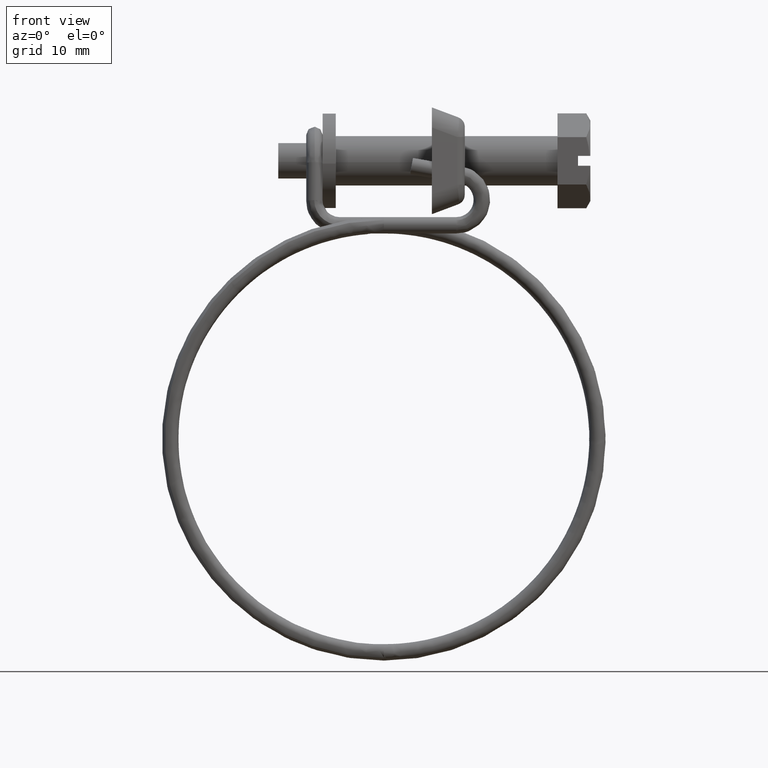
[diagram: clean part render]
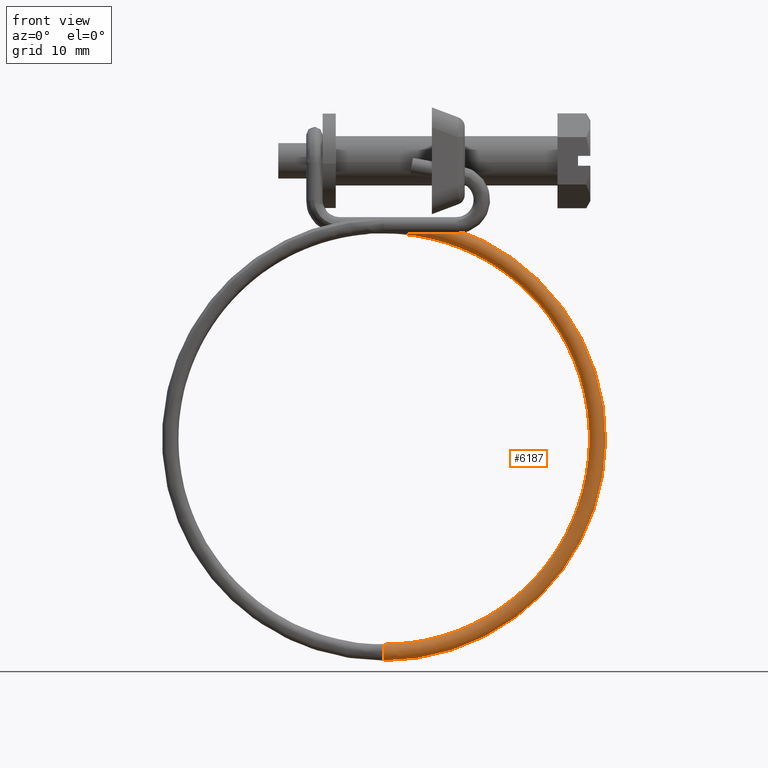
[diagram: same view with one face highlighted and labeled with its STEP entity id]
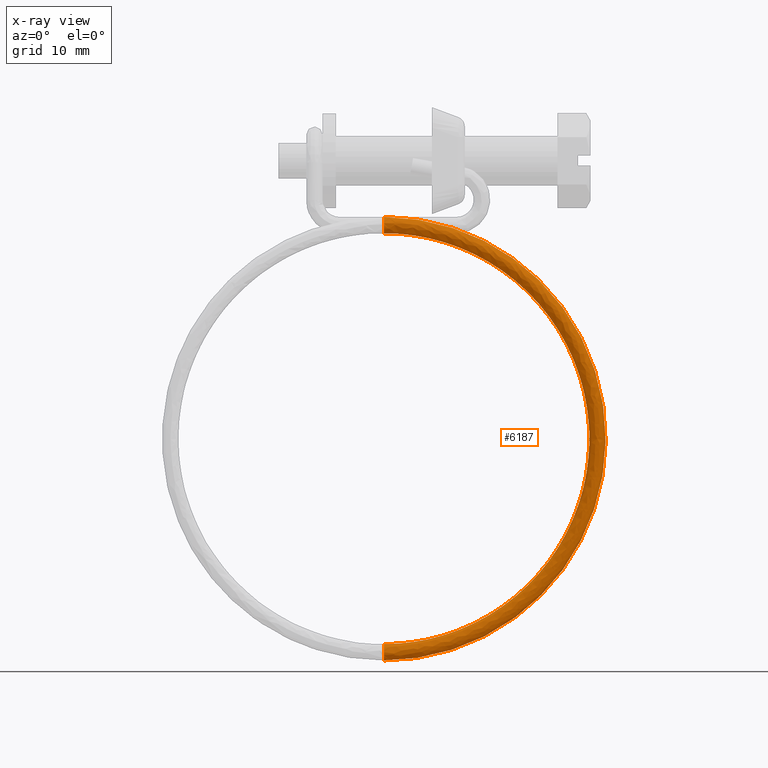
[diagram: x-ray of the same camera — body ghosted, the highlighted face saturated]
A machine part, front view. The second image highlights one B-rep face of the part: STEP entity #6187.
The next image is the same camera in x-ray: the body ghosted, the highlighted face saturated — about 0% of this face is hidden behind the body in this view.
In plain terms, the highlighted face is a freeform B-spline surface patch.
Its self-contained STEP definition (entity closure, byte-faithful):
#4789=CARTESIAN_POINT('',(-21.149997006963641,-3.594625118787946,-8.558833459366841));
#4790=VERTEX_POINT('',#4789);
#4796=CARTESIAN_POINT('',(-21.149997041421340,-4.300002000000000,-8.850001000000344));
#4797=VERTEX_POINT('',#4796);
#4798=CARTESIAN_POINT('',(-21.149997041421340,-4.300002000000000,-8.850001000000344));
#4799=CARTESIAN_POINT('',(-21.149997041421340,-3.887219065843691,-8.850001000000344));
#4800=CARTESIAN_POINT('',(-21.149997006963641,-3.594625118787945,-8.558833459366841));
#4808=(BOUNDED_CURVE()B_SPLINE_CURVE(2,(#4798,#4799,#4800),.UNSPECIFIED.,.F.,.U.)B_SPLINE_CURVE_WITH_KNOTS((3,3),(0.500000000000000,0.624631308691292),.UNSPECIFIED.)CURVE()GEOMETRIC_REPRESENTATION_ITEM()RATIONAL_B_SPLINE_CURVE((1.0,0.853985339329898,0.853554664639234))REPRESENTATION_ITEM(''));
#4809=EDGE_CURVE('',#4797,#4790,#4808,.T.);
#4811=CARTESIAN_POINT('',(-21.149997001619631,-5.048017517043782,-8.513683897837748));
#4812=VERTEX_POINT('',#4811);
#4813=CARTESIAN_POINT('',(-21.149997001619628,-5.048017517043782,-8.513683897837748));
#4814=CARTESIAN_POINT('',(-21.149997041421290,-4.749617038770698,-8.850000648479373));
#4815=CARTESIAN_POINT('',(-21.149997041421340,-4.300002000000000,-8.850001000000344));
#4823=(BOUNDED_CURVE()B_SPLINE_CURVE(2,(#4813,#4814,#4815),.UNSPECIFIED.,.F.,.U.)B_SPLINE_CURVE_WITH_KNOTS((3,3),(0.365993817823368,0.500000000000000),.UNSPECIFIED.)CURVE()GEOMETRIC_REPRESENTATION_ITEM()RATIONAL_B_SPLINE_CURVE((0.854313613147997,0.843001991845537,1.0))REPRESENTATION_ITEM(''));
#4824=EDGE_CURVE('',#4812,#4797,#4823,.T.);
#4874=CARTESIAN_POINT('',(-21.149996804734521,-4.306285020370282,-6.850040477903796));
#4875=VERTEX_POINT('',#4874);
#4876=CARTESIAN_POINT('',(-21.149996804734517,-4.306285020370282,-6.850040477903796));
#4877=CARTESIAN_POINT('',(-21.149996805473414,-5.300001690583303,-6.856284072166679));
#4878=CARTESIAN_POINT('',(-21.149996923076689,-5.300001341733656,-7.850010371523294));
#4879=CARTESIAN_POINT('',(-21.149996968009297,-5.300001208448901,-8.229682728968895));
#4880=CARTESIAN_POINT('',(-21.149997001619631,-5.048017517043782,-8.513683897837748));
#4888=(BOUNDED_CURVE()B_SPLINE_CURVE(2,(#4876,#4877,#4878,#4879,#4880),.UNSPECIFIED.,.F.,.U.)B_SPLINE_CURVE_WITH_KNOTS((3,2,3),(0.001109280963101,0.250000000000000,0.365993817823368),.UNSPECIFIED.)CURVE()GEOMETRIC_REPRESENTATION_ITEM()RATIONAL_B_SPLINE_CURVE((0.997412326028455,0.708406384673953,1.0,0.864104789341010,0.854313613147997))REPRESENTATION_ITEM(''));
#4889=EDGE_CURVE('',#4875,#4812,#4888,.T.);
#4891=CARTESIAN_POINT('',(-21.149996914825689,-3.302436326159856,-7.780267748420702));
#4892=VERTEX_POINT('',#4891);
#4906=CARTESIAN_POINT('',(-21.149997006963641,-3.594625118787945,-8.558833459366841));
#4907=CARTESIAN_POINT('',(-21.149996972266976,-3.300002000000000,-8.265646639289143));
#4908=CARTESIAN_POINT('',(-21.149996923078149,-3.300002000000000,-7.850001000000351));
#4909=CARTESIAN_POINT('',(-21.149996918946893,-3.300001999999999,-7.815091884121492));
#4910=CARTESIAN_POINT('',(-21.149996914825692,-3.302436326159857,-7.780267748420702));
#4918=(BOUNDED_CURVE()B_SPLINE_CURVE(2,(#4906,#4907,#4908,#4909,#4910),.UNSPECIFIED.,.F.,.U.)B_SPLINE_CURVE_WITH_KNOTS((3,2,3),(0.624631308691291,0.750000000000000,0.762166313466290),.UNSPECIFIED.)CURVE()GEOMETRIC_REPRESENTATION_ITEM()RATIONAL_B_SPLINE_CURVE((0.853554664639234,0.853121441856648,1.0,0.985746277151060,0.972879876384054))REPRESENTATION_ITEM(''));
#4919=EDGE_CURVE('',#4790,#4892,#4918,.T.);
#6049=CARTESIAN_POINT('',(-24.835168674842297,-3.303985170346735,-8.019664856806582));
#6050=CARTESIAN_POINT('',(4.941890185120801,-3.303985170346735,-3.771424186172226));
#6051=CARTESIAN_POINT('',(4.941890185120805,-3.303985170346736,-33.850001000000013));
#6052=CARTESIAN_POINT('',(4.941890185120804,-3.303985170346734,-63.928577813827708));
#6053=CARTESIAN_POINT('',(-24.835168674842290,-3.303985170346736,-59.680337143193462));
#6054=CARTESIAN_POINT('',(-24.833597375477868,-3.303207482734692,-8.030678515704201));
#6055=CARTESIAN_POINT('',(4.930765003593931,-3.303207482734692,-3.784249229691477));
#6056=CARTESIAN_POINT('',(4.930765003593935,-3.303207482734693,-33.850001000000020));
#6057=CARTESIAN_POINT('',(4.930765003593937,-3.303207482734692,-63.915752770308472));
#6058=CARTESIAN_POINT('',(-24.833597375477851,-3.303207482734693,-59.669323484295838));
#6059=CARTESIAN_POINT('',(-24.828006934595965,-3.300440590111869,-8.069863416019187));
#6060=CARTESIAN_POINT('',(4.891183322958193,-3.300440590111870,-3.829878757218054));
#6061=CARTESIAN_POINT('',(4.891183322958196,-3.300440590111870,-33.850000999999992));
#6062=CARTESIAN_POINT('',(4.891183322958198,-3.300440590111871,-63.870123242781951));
#6063=CARTESIAN_POINT('',(-24.828006934595962,-3.300440590111869,-59.630138583980802));
#6064=CARTESIAN_POINT('',(-24.823965084258628,-3.300080955796184,-8.098193829649008));
#6065=CARTESIAN_POINT('',(4.862566039883344,-3.300080955796186,-3.862868592031205));
#6066=CARTESIAN_POINT('',(4.862566039883344,-3.300080955796184,-33.850000999999999));
#6067=CARTESIAN_POINT('',(4.862566039883347,-3.300080955796184,-63.837133407968793));
#6068=CARTESIAN_POINT('',(-24.823965084258628,-3.300080955796185,-59.601808170351006));
#6069=CARTESIAN_POINT('',(-24.682738148100636,-3.287514915912832,-9.088091322900246));
#6070=CARTESIAN_POINT('',(3.862644995679524,-3.287514915912833,-5.015571662696382));
#6071=CARTESIAN_POINT('',(3.862644995679528,-3.287514915912832,-33.850001000000006));
#6072=CARTESIAN_POINT('',(3.862644995679535,-3.287514915912833,-62.684430337303624));
#6073=CARTESIAN_POINT('',(-24.682738148100629,-3.287514915912832,-58.611910677099765));
#6074=CARTESIAN_POINT('',(-24.680963344657240,-4.287435960116647,-9.100531396496784));
#6075=CARTESIAN_POINT('',(3.850078955796171,-4.287435960116648,-5.030057719214152));
#6076=CARTESIAN_POINT('',(3.850078955796175,-4.287435960116647,-33.850000999999999));
#6077=CARTESIAN_POINT('',(3.850078955796179,-4.287435960116647,-62.669944280785835));
#6078=CARTESIAN_POINT('',(-24.680963344657240,-4.287435960116647,-58.599470603503214));
#6079=CARTESIAN_POINT('',(-24.679188541213875,-5.287357004320464,-9.112971470093328));
#6080=CARTESIAN_POINT('',(3.837512915912821,-5.287357004320463,-5.044543775731913));
#6081=CARTESIAN_POINT('',(3.837512915912822,-5.287357004320464,-33.850001000000006));
#6082=CARTESIAN_POINT('',(3.837512915912825,-5.287357004320463,-62.655458224268081));
#6083=CARTESIAN_POINT('',(-24.679188541213868,-5.287357004320462,-58.587030529906677));
#6084=CARTESIAN_POINT('',(-24.820415477371860,-5.299923044203815,-8.123073976842091));
#6085=CARTESIAN_POINT('',(4.837433960116635,-5.299923044203815,-3.891840705066742));
#6086=CARTESIAN_POINT('',(4.837433960116638,-5.299923044203815,-33.850000999999999));
#6087=CARTESIAN_POINT('',(4.837433960116645,-5.299923044203815,-63.808161294933250));
#6088=CARTESIAN_POINT('',(-24.820415477371860,-5.299923044203815,-59.576928023157905));
#6089=CARTESIAN_POINT('',(-24.961642413529862,-5.312489084087169,-7.133176483590862));
#6090=CARTESIAN_POINT('',(5.837355004320454,-5.312489084087169,-2.739137634401562));
#6091=CARTESIAN_POINT('',(5.837355004320454,-5.312489084087169,-33.850001000000006));
#6092=CARTESIAN_POINT('',(5.837355004320459,-5.312489084087169,-64.960864365598439));
#6093=CARTESIAN_POINT('',(-24.961642413529855,-5.312489084087168,-60.566825516409139));
#6094=CARTESIAN_POINT('',(-24.963441754718151,-4.298743518865074,-7.120564418355676));
#6095=CARTESIAN_POINT('',(5.850094777403532,-4.298743518865077,-2.724451299277837));
#6096=CARTESIAN_POINT('',(5.850094777403535,-4.298743518865077,-33.850001000000006));
#6097=CARTESIAN_POINT('',(5.850094777403538,-4.298743518865077,-64.975550700722167));
#6098=CARTESIAN_POINT('',(-24.963441754718144,-4.298743518865076,-60.579437581644335));
#6099=CARTESIAN_POINT('',(-24.963466013019985,-4.285076435563923,-7.120394385408472));
#6100=CARTESIAN_POINT('',(5.850266532078409,-4.285076435563924,-2.724253301503631));
#6101=CARTESIAN_POINT('',(5.850266532078415,-4.285076435563925,-33.850000999999999));
#6102=CARTESIAN_POINT('',(5.850266532078416,-4.285076435563924,-64.975748698496361));
#6103=CARTESIAN_POINT('',(-24.963466013019985,-4.285076435563925,-60.579607614591524));
#6111=(BOUNDED_SURFACE()B_SPLINE_SURFACE(2,2,((#6049,#6054,#6059,#6064,#6069,#6074,#6079,#6084,#6089,#6094,#6099),(#6050,#6055,#6060,#6065,#6070,#6075,#6080,#6085,#6090,#6095,#6100),(#6051,#6056,#6061,#6066,#6071,#6076,#6081,#6086,#6091,#6096,#6101),(#6052,#6057,#6062,#6067,#6072,#6077,#6082,#6087,#6092,#6097,#6102),(#6053,#6058,#6063,#6068,#6073,#6078,#6083,#6088,#6093,#6098,#6103)),.UNSPECIFIED.,.F.,.F.,.U.)B_SPLINE_SURFACE_WITH_KNOTS((3,2,3),(3,1,2,2,2,1,3),(0.0,49.286871046075049,98.573742092150098),(0.0,0.025223041166774,0.091497147942495,1.748351397434886,3.405205646927277,5.062059896419667,5.094641911159926),.UNSPECIFIED.)GEOMETRIC_REPRESENTATION_ITEM()RATIONAL_B_SPLINE_SURFACE(((0.965014600618829,0.969098596566595,0.983913383528984,0.995577285838481,0.703979450011688,0.995577285838481,0.703979450011688,0.995577285838481,0.703979450011688,1.001311553042761,1.007045820247041),(0.633749724897836,0.636431789300510,0.646161038117899,0.653821020542143,0.462321277307658,0.653821020542143,0.462321277307658,0.653821020542143,0.462321277307658,0.657586860210136,0.661352699878130),(0.969301544285523,0.973403682819476,0.988284282420452,1.0,0.707106781186548,1.0,0.707106781186548,1.0,0.707106781186548,1.005759740891889,1.011519481783778),(0.633749724897836,0.636431789300510,0.646161038117899,0.653821020542143,0.462321277307658,0.653821020542143,0.462321277307658,0.653821020542143,0.462321277307658,0.657586860210136,0.661352699878130),(0.965014600618829,0.969098596566595,0.983913383528984,0.995577285838481,0.703979450011688,0.995577285838481,0.703979450011688,0.995577285838481,0.703979450011688,1.001311553042761,1.007045820247041)))REPRESENTATION_ITEM('')SURFACE());
#6112=CARTESIAN_POINT('',(-21.149999999998919,-4.300002000000003,-58.850000999999999));
#6113=VERTEX_POINT('',#6112);
#6114=CARTESIAN_POINT('',(-21.149999999998901,-3.302485887035315,-59.919730657954759));
#6115=VERTEX_POINT('',#6114);
#6116=CARTESIAN_POINT('',(-21.149999999998919,-4.300002000000003,-58.850000999999999));
#6117=CARTESIAN_POINT('',(-21.149999999998919,-4.038196562363256,-58.850001438668563));
#6118=CARTESIAN_POINT('',(-21.149999999998919,-3.778000607902755,-58.957775164691682));
#6119=CARTESIAN_POINT('',(-21.149999999998919,-3.407742631726005,-59.328016695221827));
#6120=CARTESIAN_POINT('',(-21.149999999998911,-3.299960596688532,-59.588204614319672));
#6121=CARTESIAN_POINT('',(-21.149999999998911,-3.299953531839379,-59.873276473137132));
#6122=CARTESIAN_POINT('',(-21.149999999998911,-3.300804581624378,-59.896535733557762));
#6123=CARTESIAN_POINT('',(-21.149999999998901,-3.302485887035315,-59.919730657954759));
#6124=B_SPLINE_CURVE_WITH_KNOTS('',3,(#6116,#6117,#6118,#6119,#6120,#6121,#6122,#6123),.UNSPECIFIED.,.F.,.U.,(4,2,2,4),(0.500000000000000,0.625000000000000,0.750000000000000,0.761111541812489),.UNSPECIFIED.);
#6125=EDGE_CURVE('',#6113,#6115,#6124,.T.);
#6126=ORIENTED_EDGE('',*,*,#6125,.F.);
#6127=CARTESIAN_POINT('',(-21.149999999998752,-5.028950104822924,-60.534537615100980));
#6128=VERTEX_POINT('',#6127);
#6129=CARTESIAN_POINT('',(-21.149999999998752,-5.028950104822924,-60.534537615100980));
#6130=CARTESIAN_POINT('',(-21.149999999998851,-5.200678408402418,-60.351169861159242));
#6131=CARTESIAN_POINT('',(-21.149999999998869,-5.300001999999999,-60.101328293313877));
#6132=CARTESIAN_POINT('',(-21.149999999998890,-5.300002000000001,-59.588201612200862));
#6133=CARTESIAN_POINT('',(-21.149999999998901,-5.192228903609815,-59.328014341236717));
#6134=CARTESIAN_POINT('',(-21.149999999998919,-4.821988658763284,-58.957774096390189));
#6135=CARTESIAN_POINT('',(-21.149999999998919,-4.561801387799152,-58.850001000000013));
#6136=CARTESIAN_POINT('',(-21.149999999998919,-4.300002000000003,-58.850000999999999));
#6137=B_SPLINE_CURVE_WITH_KNOTS('',3,(#6129,#6130,#6131,#6132,#6133,#6134,#6135,#6136),.UNSPECIFIED.,.F.,.U.,(4,2,2,4),(0.130000056805568,0.250000000000000,0.375000000000000,0.500000000000000),.UNSPECIFIED.);
#6138=EDGE_CURVE('',#6128,#6113,#6137,.T.);
#6139=ORIENTED_EDGE('',*,*,#6138,.F.);
#6140=CARTESIAN_POINT('',(-21.149977872803269,-4.306285019941678,-60.849961522083767));
#6141=VERTEX_POINT('',#6140);
#6142=CARTESIAN_POINT('',(-21.149977872803269,-4.306285019941678,-60.849961522083767));
#6143=CARTESIAN_POINT('',(-21.149984570471251,-4.565959695528945,-60.848258487148627));
#6144=CARTESIAN_POINT('',(-21.149992400374611,-4.823469649266744,-60.740740414056937));
#6145=CARTESIAN_POINT('',(-21.149999458464880,-5.014513667183075,-60.549702432080807));
#6146=CARTESIAN_POINT('',(-21.149999730202850,-5.021794799672215,-60.542177663756192));
#6147=CARTESIAN_POINT('',(-21.149999999998752,-5.028950104822924,-60.534537615100980));
#6148=B_SPLINE_CURVE_WITH_KNOTS('',3,(#6142,#6143,#6144,#6145,#6146,#6147),.UNSPECIFIED.,.F.,.U.,(4,2,4),(0.001000048621639,0.125000000000000,0.130000056805568),.UNSPECIFIED.);
#6149=EDGE_CURVE('',#6141,#6128,#6148,.T.);
#6150=ORIENTED_EDGE('',*,*,#6149,.F.);
#6151=CARTESIAN_POINT('',(-21.149996804734517,-4.306285020370282,-6.850040477903796));
#6152=CARTESIAN_POINT('',(5.849921044208488,-4.306285020370281,-6.850043673182733));
#6153=CARTESIAN_POINT('',(5.849921044222324,-4.306285020155980,-33.850001000012057));
#6154=CARTESIAN_POINT('',(5.849921044236162,-4.306285019941678,-60.849939394919041));
#6155=CARTESIAN_POINT('',(-21.149977872803269,-4.306285019941679,-60.849961522083767));
#6163=(BOUNDED_CURVE()B_SPLINE_CURVE(2,(#6151,#6152,#6153,#6154,#6155),.UNSPECIFIED.,.F.,.U.)B_SPLINE_CURVE_WITH_KNOTS((3,2,3),(-3.806731573852017,-2.0,-0.193269294274070),.UNSPECIFIED.)CURVE()GEOMETRIC_REPRESENTATION_ITEM()RATIONAL_B_SPLINE_CURVE((0.939171323010549,0.685263246553913,1.0,0.685263397783454,0.939171079007390))REPRESENTATION_ITEM(''));
#6164=EDGE_CURVE('',#4875,#6141,#6163,.T.);
#6165=ORIENTED_EDGE('',*,*,#6164,.F.);
#6166=ORIENTED_EDGE('',*,*,#4889,.T.);
#6167=ORIENTED_EDGE('',*,*,#4824,.T.);
#6168=ORIENTED_EDGE('',*,*,#4809,.T.);
#6169=ORIENTED_EDGE('',*,*,#4919,.T.);
#6170=CARTESIAN_POINT('',(-21.149996914825692,-3.302436326159856,-7.780267748420703));
#6171=CARTESIAN_POINT('',(4.919733251575429,-3.302436326161323,-7.780270833594539));
#6172=CARTESIAN_POINT('',(4.919733251575428,-3.302461106596119,-33.849999203187743));
#6173=CARTESIAN_POINT('',(4.919733251575428,-3.302485887033849,-59.919730657953743));
#6174=CARTESIAN_POINT('',(-21.149999999998901,-3.302485887035316,-59.919730657954759));
#6182=(BOUNDED_CURVE()B_SPLINE_CURVE(2,(#6170,#6171,#6172,#6173,#6174),.UNSPECIFIED.,.F.,.U.)B_SPLINE_CURVE_WITH_KNOTS((3,2,3),(-3.806731573852253,-2.0,-0.193268279628713),.UNSPECIFIED.)CURVE()GEOMETRIC_REPRESENTATION_ITEM()RATIONAL_B_SPLINE_CURVE((0.918045416183310,0.669848798578111,0.977505800795127,0.669848773628303,0.918045456438911))REPRESENTATION_ITEM(''));
#6183=EDGE_CURVE('',#4892,#6115,#6182,.T.);
#6184=ORIENTED_EDGE('',*,*,#6183,.T.);
#6185=EDGE_LOOP('',(#6126,#6139,#6150,#6165,#6166,#6167,#6168,#6169,#6184));
#6186=FACE_OUTER_BOUND('',#6185,.T.);
#6187=ADVANCED_FACE('',(#6186),#6111,.T.);